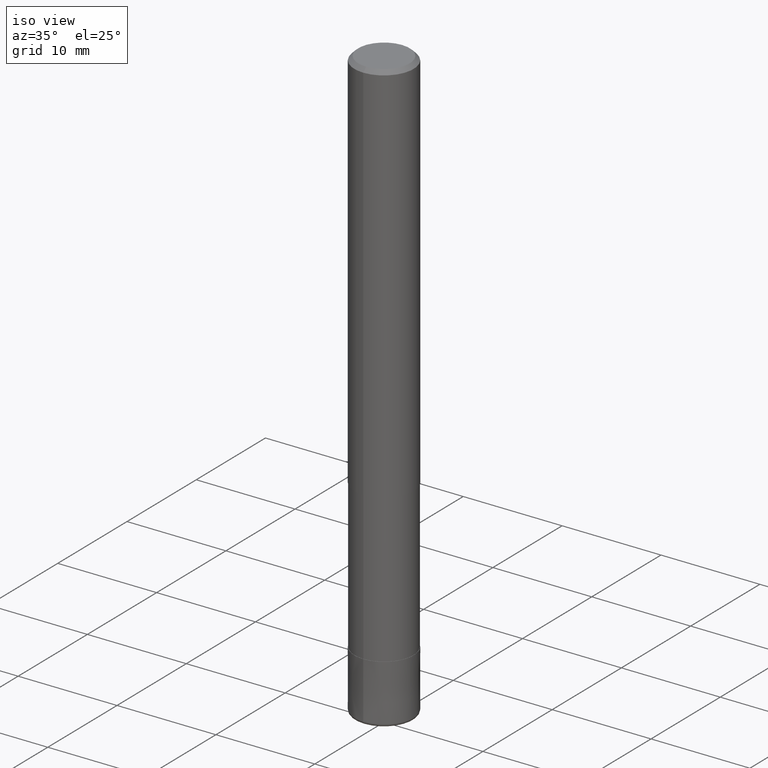
[diagram: clean part render]
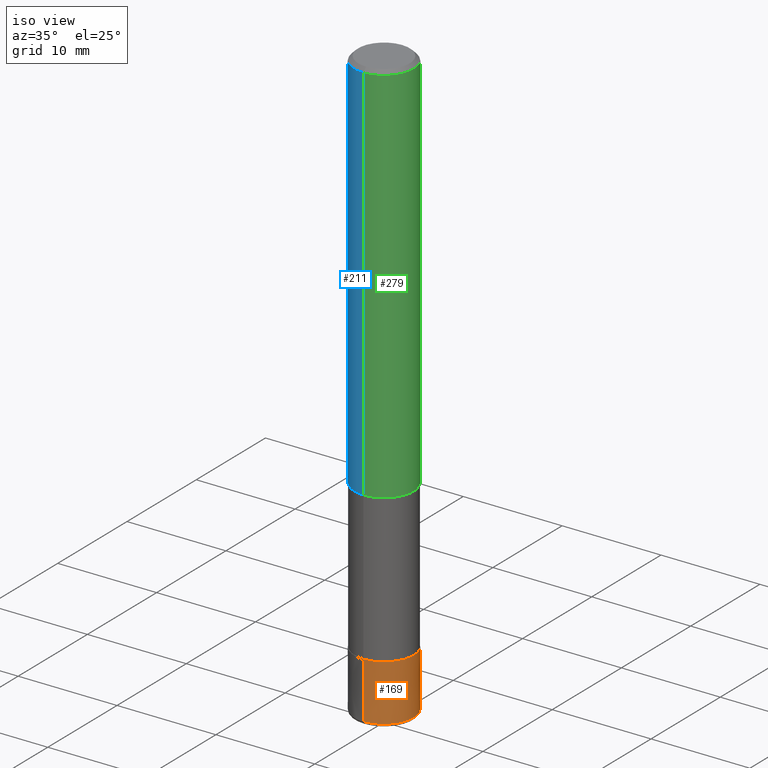
[diagram: same view with three faces highlighted in distinct colors, each labeled with its STEP entity id]
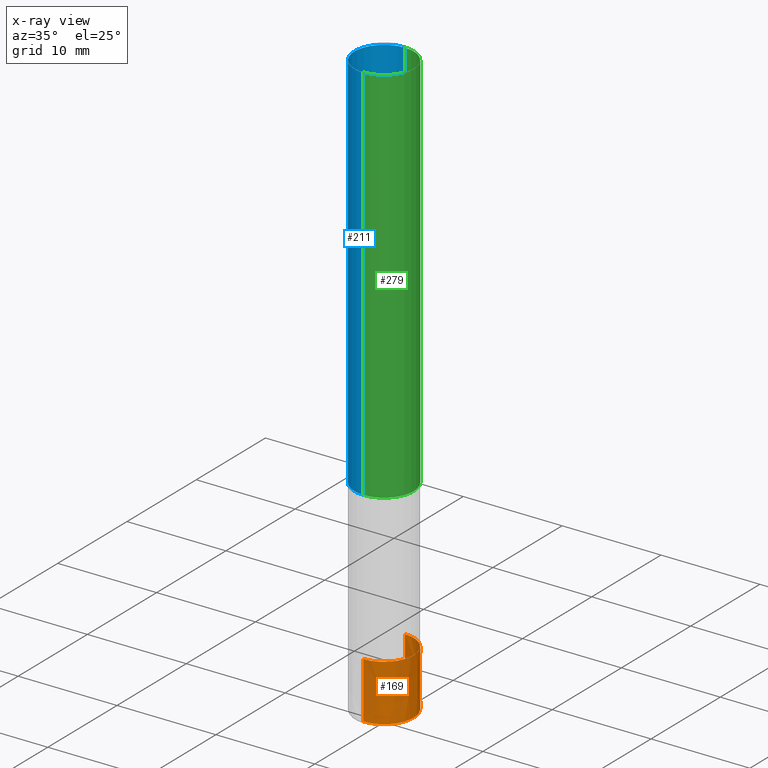
[diagram: x-ray of the same camera — body ghosted, the three highlighted faces saturated]
A machine part, iso view with three faces highlighted in distinct colors.
The next image is the same camera in x-ray (body ghosted, the three faces saturated) — at least one of them is partly hidden behind the body in this view.
Their STEP definitions:

[orange] entity #169 — the highlighted conical surface has half-angle 0.001 deg.
#135=EDGE_CURVE('',#143,#223,#323,.T.);
#143=VERTEX_POINT('',#331);
#145=VERTEX_POINT('',#333);
#169=ADVANCED_FACE('',(#359),#360,.T.);
#195=EDGE_CURVE('',#143,#261,#390,.T.);
#197=EDGE_CURVE('',#261,#145,#392,.T.);
#223=VERTEX_POINT('',#423);
#261=VERTEX_POINT('',#468);
#263=EDGE_CURVE('',#145,#223,#470,.T.);
#323=CIRCLE('',#531,2.9999);
#331=CARTESIAN_POINT('',(0.0,2.9999,-54.0));
#333=CARTESIAN_POINT('',(3.67381906146713E-016,-3.0,-59.7));
#359=FACE_OUTER_BOUND('',#575,.T.);
#360=CONICAL_SURFACE('',#576,2.99995,1.75438596473599E-005);
#390=LINE('',#617,#618);
#392=CIRCLE('',#621,3.0);
#423=CARTESIAN_POINT('',(3.67369660083175E-016,-2.9999,-54.0));
#468=CARTESIAN_POINT('',(0.0,3.0,-59.7));
#470=LINE('',#716,#717);
#531=AXIS2_PLACEMENT_3D('',#766,#767,#768);
#575=EDGE_LOOP('',(#808,#809,#810,#811));
#576=AXIS2_PLACEMENT_3D('',#812,#813,#814);
#617=CARTESIAN_POINT('',(-3.67375783114944E-016,2.99995,-56.85));
#618=VECTOR('',#854,1.0);
#621=AXIS2_PLACEMENT_3D('',#855,#856,#857);
#716=CARTESIAN_POINT('',(3.67375783114944E-016,-2.99995,-56.85));
#717=VECTOR('',#957,1.0);
#766=CARTESIAN_POINT('',(0.0,0.0,-54.0));
#767=DIRECTION('',(0.0,0.0,-1.0));
#768=DIRECTION('',(0.0,1.0,0.0));
#808=ORIENTED_EDGE('',*,*,#195,.F.);
#809=ORIENTED_EDGE('',*,*,#135,.T.);
#810=ORIENTED_EDGE('',*,*,#263,.F.);
#811=ORIENTED_EDGE('',*,*,#197,.F.);
#812=CARTESIAN_POINT('',(0.0,0.0,-56.85));
#813=DIRECTION('',(0.0,-0.0,-1.0));
#814=DIRECTION('',(0.0,1.0,0.0));
#854=DIRECTION('',(-2.14843219936228E-021,1.75438596464599E-005,-0.999999999846107));
#855=CARTESIAN_POINT('',(0.0,0.0,-59.7));
#856=DIRECTION('',(0.0,0.0,-1.0));
#857=DIRECTION('',(0.0,1.0,0.0));
#957=DIRECTION('',(-2.14843219936229E-021,1.75438596464599E-005,0.999999999846107));

[blue] entity #211 — the highlighted cylindrical surface (edge-blend (fillet) strip) has radius 3 mm, axis along (-0, -0, 1).
#161=EDGE_CURVE('',#277,#265,#350,.T.);
#163=EDGE_CURVE('',#183,#217,#352,.T.);
#179=EDGE_CURVE('',#265,#217,#373,.T.);
#183=VERTEX_POINT('',#377);
#211=ADVANCED_FACE('',(#408),#409,.T.);
#217=VERTEX_POINT('',#416);
#233=EDGE_CURVE('',#183,#277,#433,.T.);
#265=VERTEX_POINT('',#472);
#277=VERTEX_POINT('',#487);
#350=CIRCLE('',#564,3.0);
#352=CIRCLE('',#567,3.0);
#373=LINE('',#593,#594);
#377=CARTESIAN_POINT('',(3.67381906146713E-016,-3.0,-39.0));
#408=FACE_OUTER_BOUND('',#640,.T.);
#409=CYLINDRICAL_SURFACE('',#641,3.0);
#416=CARTESIAN_POINT('',(0.0,3.0,-39.0));
#433=LINE('',#669,#670);
#472=CARTESIAN_POINT('',(0.0,3.0,-0.399999999999999));
#487=CARTESIAN_POINT('',(3.67381906146713E-016,-3.0,-0.399999999999999));
#564=AXIS2_PLACEMENT_3D('',#790,#791,#792);
#567=AXIS2_PLACEMENT_3D('',#793,#794,#795);
#593=CARTESIAN_POINT('',(-3.67381906146713E-016,3.0,-19.7));
#594=VECTOR('',#835,1.0);
#640=EDGE_LOOP('',(#879,#880,#881,#882));
#641=AXIS2_PLACEMENT_3D('',#883,#884,#885);
#669=CARTESIAN_POINT('',(3.67381906146713E-016,-3.0,-19.7));
#670=VECTOR('',#906,1.0);
#790=CARTESIAN_POINT('',(0.0,0.0,-0.399999999999999));
#791=DIRECTION('',(0.0,0.0,-1.0));
#792=DIRECTION('',(0.0,1.0,0.0));
#793=CARTESIAN_POINT('',(0.0,0.0,-39.0));
#794=DIRECTION('',(0.0,0.0,-1.0));
#795=DIRECTION('',(0.0,1.0,0.0));
#835=DIRECTION('',(0.0,0.0,-1.0));
#879=ORIENTED_EDGE('',*,*,#179,.T.);
#880=ORIENTED_EDGE('',*,*,#163,.F.);
#881=ORIENTED_EDGE('',*,*,#233,.T.);
#882=ORIENTED_EDGE('',*,*,#161,.T.);
#883=CARTESIAN_POINT('',(0.0,0.0,-19.7));
#884=DIRECTION('',(-0.0,-0.0,1.0));
#885=DIRECTION('',(0.0,1.0,0.0));
#906=DIRECTION('',(-0.0,-0.0,1.0));

[green] entity #279 — the highlighted cylindrical surface (edge-blend (fillet) strip) has radius 3 mm, axis along (-0, -0, 1).
#157=EDGE_CURVE('',#217,#183,#345,.T.);
#179=EDGE_CURVE('',#265,#217,#373,.T.);
#183=VERTEX_POINT('',#377);
#217=VERTEX_POINT('',#416);
#233=EDGE_CURVE('',#183,#277,#433,.T.);
#243=EDGE_CURVE('',#265,#277,#444,.T.);
#265=VERTEX_POINT('',#472);
#277=VERTEX_POINT('',#487);
#279=ADVANCED_FACE('',(#489),#490,.T.);
#345=CIRCLE('',#558,3.0);
#373=LINE('',#593,#594);
#377=CARTESIAN_POINT('',(3.67381906146713E-016,-3.0,-39.0));
#416=CARTESIAN_POINT('',(0.0,3.0,-39.0));
#433=LINE('',#669,#670);
#444=CIRCLE('',#684,3.0);
#472=CARTESIAN_POINT('',(0.0,3.0,-0.399999999999999));
#487=CARTESIAN_POINT('',(3.67381906146713E-016,-3.0,-0.399999999999999));
#489=FACE_OUTER_BOUND('',#737,.T.);
#490=CYLINDRICAL_SURFACE('',#738,3.0);
#558=AXIS2_PLACEMENT_3D('',#781,#782,#783);
#593=CARTESIAN_POINT('',(-3.67381906146713E-016,3.0,-19.7));
#594=VECTOR('',#835,1.0);
#669=CARTESIAN_POINT('',(3.67381906146713E-016,-3.0,-19.7));
#670=VECTOR('',#906,1.0);
#684=AXIS2_PLACEMENT_3D('',#921,#922,#923);
#737=EDGE_LOOP('',(#984,#985,#986,#987));
#738=AXIS2_PLACEMENT_3D('',#988,#989,#990);
#781=CARTESIAN_POINT('',(0.0,0.0,-39.0));
#782=DIRECTION('',(0.0,0.0,-1.0));
#783=DIRECTION('',(0.0,1.0,0.0));
#835=DIRECTION('',(0.0,0.0,-1.0));
#906=DIRECTION('',(-0.0,-0.0,1.0));
#921=CARTESIAN_POINT('',(0.0,0.0,-0.399999999999999));
#922=DIRECTION('',(0.0,0.0,-1.0));
#923=DIRECTION('',(0.0,1.0,0.0));
#984=ORIENTED_EDGE('',*,*,#179,.F.);
#985=ORIENTED_EDGE('',*,*,#243,.T.);
#986=ORIENTED_EDGE('',*,*,#233,.F.);
#987=ORIENTED_EDGE('',*,*,#157,.F.);
#988=CARTESIAN_POINT('',(0.0,0.0,-19.7));
#989=DIRECTION('',(-0.0,-0.0,1.0));
#990=DIRECTION('',(0.0,1.0,0.0));